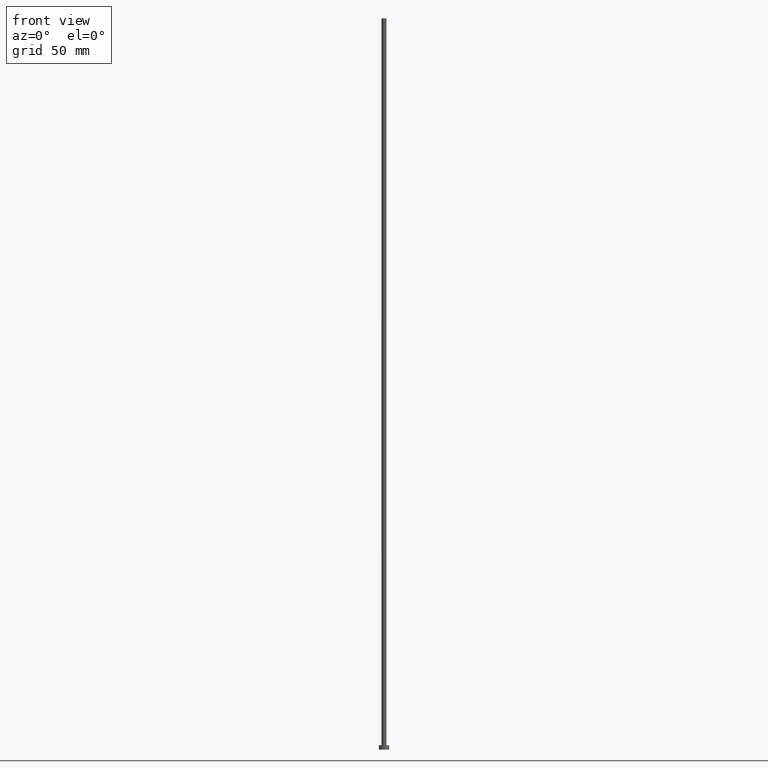
[diagram: clean part render]
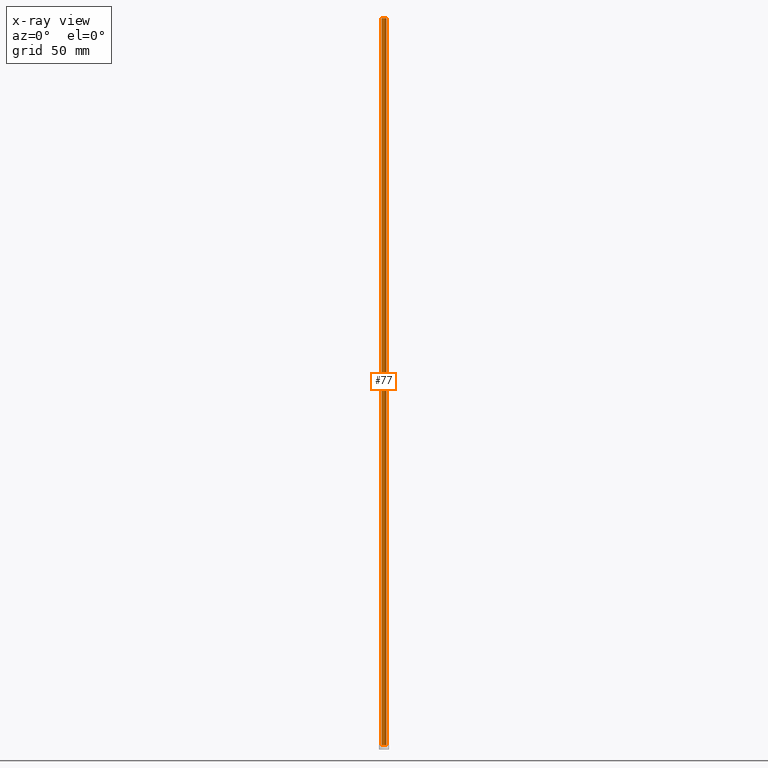
[diagram: x-ray — body ghosted, one internal face saturated and labeled with its STEP entity id]
A machine part, front view, then the same camera in x-ray: the body is ghosted and one INTERNAL B-rep face — a face not visible from any outside direction — is saturated and labeled: STEP entity #77.
In plain terms, the highlighted cylindrical surface (edge-blend (fillet) strip) has radius 1.75 mm, axis along (-0, -0, -1).
Its self-contained STEP definition (entity closure, byte-faithful):
#8 = LINE ( 'NONE', #84, #96 ) ;
#10 = CARTESIAN_POINT ( 'NONE',  ( 0.000000000000000000, 0.000000000000000000, 500.0000000000000000 ) ) ;
#22 = ORIENTED_EDGE ( 'NONE', *, *, #178, .F. ) ;
#46 = EDGE_LOOP ( 'NONE', ( #117, #118, #111, #22 ) ) ;
#49 = CARTESIAN_POINT ( 'NONE',  ( 1.750000000000000000, 2.143131898507867804E-16, 500.0000000000000000 ) ) ;
#55 = CIRCLE ( 'NONE', #69, 1.750000000000000000 ) ;
#59 = EDGE_CURVE ( 'NONE', #204, #200, #180, .T. ) ;
#62 = CARTESIAN_POINT ( 'NONE',  ( -1.750000000000000000, 0.000000000000000000, 3.000000000000000000 ) ) ;
#63 = DIRECTION ( 'NONE',  ( 1.000000000000000000, 0.000000000000000000, 0.000000000000000000 ) ) ;
#69 = AXIS2_PLACEMENT_3D ( 'NONE', #141, #214, #158 ) ;
#77 = ADVANCED_FACE ( 'NONE', ( #112 ), #199, .T. ) ;
#79 = CARTESIAN_POINT ( 'NONE',  ( -1.750000000000000000, 0.000000000000000000, 500.0000000000000000 ) ) ;
#83 = DIRECTION ( 'NONE',  ( -1.000000000000000000, 0.000000000000000000, 0.000000000000000000 ) ) ;
#84 = CARTESIAN_POINT ( 'NONE',  ( 1.750000000000000000, 2.143131898507867804E-16, 500.0000000000000000 ) ) ;
#95 = VERTEX_POINT ( 'NONE', #79 ) ;
#96 = VECTOR ( 'NONE', #219, 1000.000000000000000 ) ;
#110 = DIRECTION ( 'NONE',  ( -0.000000000000000000, -0.000000000000000000, -1.000000000000000000 ) ) ;
#111 = ORIENTED_EDGE ( 'NONE', *, *, #59, .T. ) ;
#112 = FACE_OUTER_BOUND ( 'NONE', #46, .T. ) ;
#117 = ORIENTED_EDGE ( 'NONE', *, *, #230, .F. ) ;
#118 = ORIENTED_EDGE ( 'NONE', *, *, #218, .T. ) ;
#135 = AXIS2_PLACEMENT_3D ( 'NONE', #197, #241, #63 ) ;
#141 = CARTESIAN_POINT ( 'NONE',  ( 0.000000000000000000, 0.000000000000000000, 500.0000000000000000 ) ) ;
#142 = DIRECTION ( 'NONE',  ( -0.000000000000000000, -0.000000000000000000, -1.000000000000000000 ) ) ;
#158 = DIRECTION ( 'NONE',  ( 1.000000000000000000, 0.000000000000000000, 0.000000000000000000 ) ) ;
#178 = EDGE_CURVE ( 'NONE', #95, #200, #245, .T. ) ;
#180 = CIRCLE ( 'NONE', #135, 1.750000000000000000 ) ;
#181 = VECTOR ( 'NONE', #142, 1000.000000000000000 ) ;
#184 = CARTESIAN_POINT ( 'NONE',  ( -1.750000000000000000, 0.000000000000000000, 500.0000000000000000 ) ) ;
#193 = AXIS2_PLACEMENT_3D ( 'NONE', #10, #110, #83 ) ;
#197 = CARTESIAN_POINT ( 'NONE',  ( 0.000000000000000000, 0.000000000000000000, 3.000000000000000000 ) ) ;
#199 = CYLINDRICAL_SURFACE ( 'NONE', #193, 1.750000000000000000 ) ;
#200 = VERTEX_POINT ( 'NONE', #62 ) ;
#204 = VERTEX_POINT ( 'NONE', #226 ) ;
#214 = DIRECTION ( 'NONE',  ( 0.000000000000000000, 0.000000000000000000, 1.000000000000000000 ) ) ;
#218 = EDGE_CURVE ( 'NONE', #227, #204, #8, .T. ) ;
#219 = DIRECTION ( 'NONE',  ( -0.000000000000000000, -0.000000000000000000, -1.000000000000000000 ) ) ;
#226 = CARTESIAN_POINT ( 'NONE',  ( 1.750000000000000000, 2.143131898507867804E-16, 3.000000000000000000 ) ) ;
#227 = VERTEX_POINT ( 'NONE', #49 ) ;
#230 = EDGE_CURVE ( 'NONE', #227, #95, #55, .T. ) ;
#241 = DIRECTION ( 'NONE',  ( 0.000000000000000000, 0.000000000000000000, 1.000000000000000000 ) ) ;
#245 = LINE ( 'NONE', #184, #181 ) ;